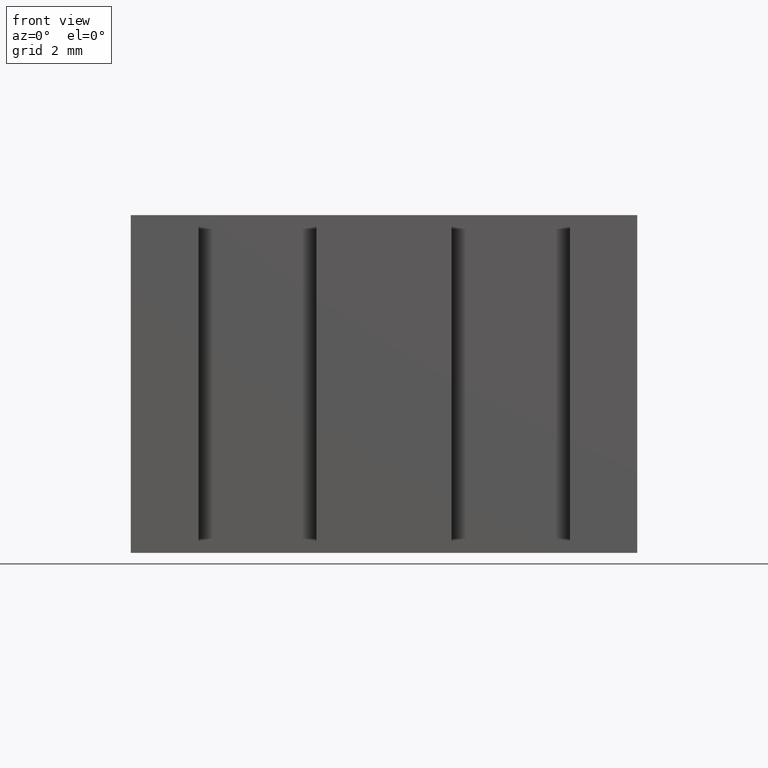
[diagram: clean part render]
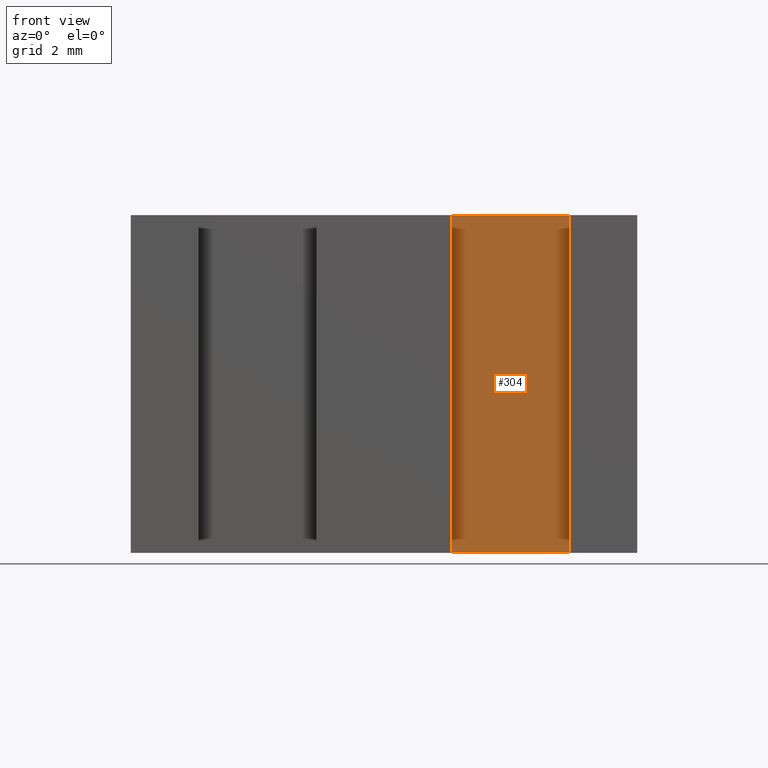
[diagram: same view with one face highlighted and labeled with its STEP entity id]
A machine part, front view. The second image highlights one B-rep face of the part: STEP entity #304.
In plain terms, the highlighted planar face has unit normal (0, -1, 0).
Its self-contained STEP definition (entity closure, byte-faithful):
#18=FACE_OUTER_BOUND('',#34,.T.);
#34=EDGE_LOOP('',(#220,#221,#222,#223));
#51=LINE('',#443,#93);
#63=LINE('',#467,#105);
#65=LINE('',#471,#107);
#66=LINE('',#472,#108);
#93=VECTOR('',#364,10.);
#105=VECTOR('',#378,10.);
#107=VECTOR('',#382,10.);
#108=VECTOR('',#383,10.);
#135=VERTEX_POINT('',#440);
#136=VERTEX_POINT('',#442);
#147=VERTEX_POINT('',#465);
#148=VERTEX_POINT('',#470);
#163=EDGE_CURVE('',#136,#135,#51,.T.);
#175=EDGE_CURVE('',#147,#135,#63,.T.);
#177=EDGE_CURVE('',#147,#148,#65,.T.);
#178=EDGE_CURVE('',#148,#136,#66,.T.);
#220=ORIENTED_EDGE('',*,*,#177,.T.);
#221=ORIENTED_EDGE('',*,*,#178,.T.);
#222=ORIENTED_EDGE('',*,*,#163,.T.);
#223=ORIENTED_EDGE('',*,*,#175,.F.);
#288=PLANE('',#343);
#304=ADVANCED_FACE('',(#18),#288,.T.);
#343=AXIS2_PLACEMENT_3D('',#469,#380,#381);
#364=DIRECTION('',(1.,1.58603289232165E-16,0.));
#378=DIRECTION('',(0.,0.,-1.));
#380=DIRECTION('center_axis',(1.58603289232165E-16,-1.,0.));
#381=DIRECTION('ref_axis',(0.,0.,-1.));
#382=DIRECTION('',(-1.,-1.58603289232165E-16,0.));
#383=DIRECTION('',(0.,0.,-1.));
#440=CARTESIAN_POINT('',(5.5,1.,-5.));
#442=CARTESIAN_POINT('',(2.,1.,-5.));
#443=CARTESIAN_POINT('',(5.5,1.,-5.));
#465=CARTESIAN_POINT('',(5.5,1.,5.));
#467=CARTESIAN_POINT('',(5.5,1.,0.));
#469=CARTESIAN_POINT('Origin',(5.5,1.,0.));
#470=CARTESIAN_POINT('',(2.,1.,5.));
#471=CARTESIAN_POINT('',(5.5,1.,5.));
#472=CARTESIAN_POINT('',(2.,1.,0.));